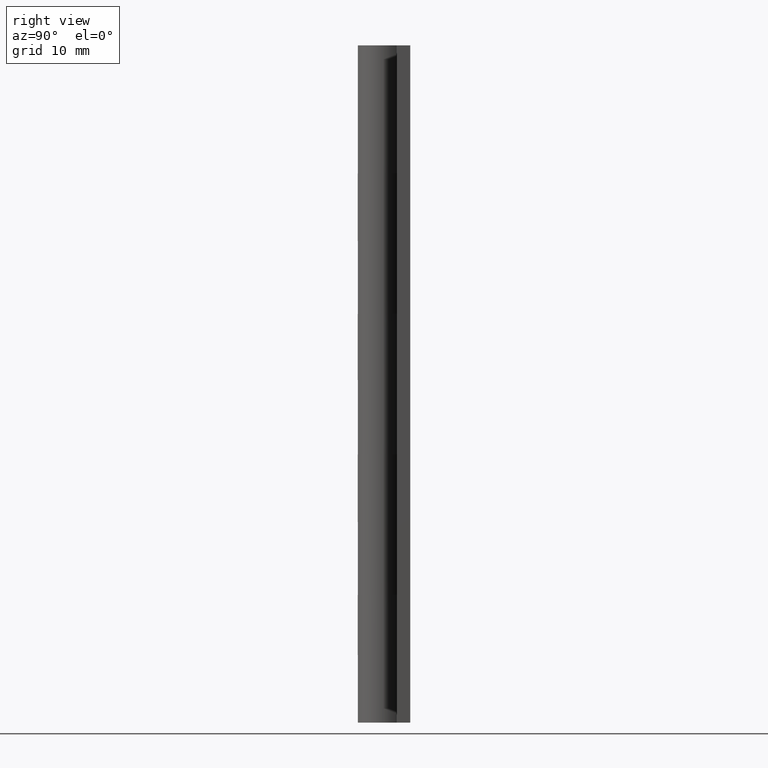
[diagram: clean part render]
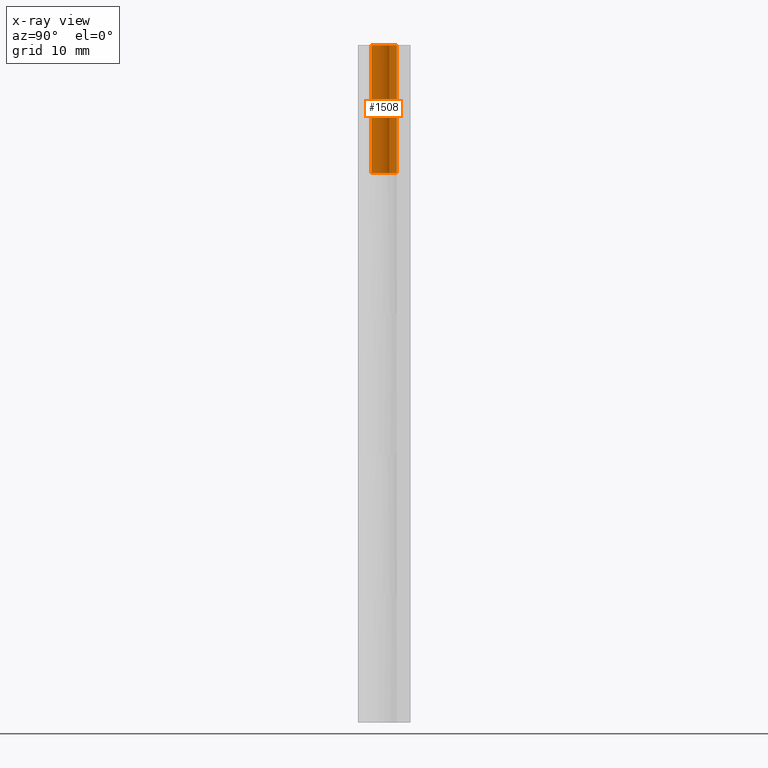
[diagram: x-ray — body ghosted, one internal face saturated and labeled with its STEP entity id]
A machine part, right view, then the same camera in x-ray: the body is ghosted and one INTERNAL B-rep face — a face not visible from any outside direction — is saturated and labeled: STEP entity #1508.
In plain terms, the highlighted face is a freeform B-spline surface patch.
Its self-contained STEP definition (entity closure, byte-faithful):
#1105=CARTESIAN_POINT('',(0.0,1.500000000000000,64.899993999999893));
#1106=VERTEX_POINT('',#1105);
#1112=CARTESIAN_POINT('',(1.325797621821316,0.701612903225806,64.899993999999893));
#1113=VERTEX_POINT('',#1112);
#1114=CARTESIAN_POINT('',(1.325797621821315,0.701612903225806,64.899993999999893));
#1115=CARTESIAN_POINT('',(1.859045520162959,-0.306035035134632,64.899993999999893));
#1116=CARTESIAN_POINT('',(1.030933009042893,-1.089576583295441,64.899993999999893));
#1117=CARTESIAN_POINT('',(0.202820497922826,-1.873118131456252,64.899993999999893));
#1118=CARTESIAN_POINT('',(-0.773815431857395,-1.284994037892532,64.899993999999893));
#1119=CARTESIAN_POINT('',(-1.750451361637613,-0.696869944328814,64.899993999999893));
#1120=CARTESIAN_POINT('',(-1.445249296287461,0.401565027835592,64.899993999999893));
#1121=CARTESIAN_POINT('',(-1.140047230937308,1.500000000000000,64.899993999999893));
#1122=CARTESIAN_POINT('',(0.0,1.500000000000000,64.899993999999893));
#1130=(BOUNDED_CURVE()B_SPLINE_CURVE(2,(#1114,#1115,#1116,#1117,#1118,#1119,#1120,#1121,#1122),.UNSPECIFIED.,.F.,.U.)B_SPLINE_CURVE_WITH_KNOTS((3,2,2,2,3),(0.0,0.250000000000000,0.500000000000000,0.750000000000000,1.0),.UNSPECIFIED.)CURVE()GEOMETRIC_REPRESENTATION_ITEM()RATIONAL_B_SPLINE_CURVE((1.0,0.796150117301085,1.0,0.796150117301085,1.0,0.796150117301085,1.0,0.796150117301085,1.0))REPRESENTATION_ITEM(''));
#1131=EDGE_CURVE('',#1113,#1106,#1130,.T.);
#1247=CARTESIAN_POINT('',(1.325797621821316,0.701612903225806,80.0));
#1248=VERTEX_POINT('',#1247);
#1254=CARTESIAN_POINT('',(0.0,1.500000000000000,80.0));
#1255=VERTEX_POINT('',#1254);
#1256=CARTESIAN_POINT('',(1.325797621821315,0.701612903225806,80.0));
#1257=CARTESIAN_POINT('',(1.859045520162959,-0.306035035134632,79.999999999999986));
#1258=CARTESIAN_POINT('',(1.030933009042893,-1.089576583295441,80.0));
#1259=CARTESIAN_POINT('',(0.202820497922826,-1.873118131456252,79.999999999999986));
#1260=CARTESIAN_POINT('',(-0.773815431857395,-1.284994037892532,80.0));
#1261=CARTESIAN_POINT('',(-1.750451361637613,-0.696869944328814,79.999999999999986));
#1262=CARTESIAN_POINT('',(-1.445249296287461,0.401565027835592,80.0));
#1263=CARTESIAN_POINT('',(-1.140047230937308,1.500000000000000,79.999999999999986));
#1264=CARTESIAN_POINT('',(0.0,1.500000000000000,80.0));
#1272=(BOUNDED_CURVE()B_SPLINE_CURVE(2,(#1256,#1257,#1258,#1259,#1260,#1261,#1262,#1263,#1264),.UNSPECIFIED.,.F.,.U.)B_SPLINE_CURVE_WITH_KNOTS((3,2,2,2,3),(0.0,0.250000000000000,0.500000000000000,0.750000000000000,1.0),.UNSPECIFIED.)CURVE()GEOMETRIC_REPRESENTATION_ITEM()RATIONAL_B_SPLINE_CURVE((1.0,0.796150117301085,1.0,0.796150117301085,1.0,0.796150117301085,1.0,0.796150117301085,1.0))REPRESENTATION_ITEM(''));
#1273=EDGE_CURVE('',#1248,#1255,#1272,.T.);
#1368=CARTESIAN_POINT('',(0.0,1.500000000000000,80.0));
#1369=CARTESIAN_POINT('',(0.0,1.500000000000000,64.899993999999893));
#1370=QUASI_UNIFORM_CURVE('',1,(#1368,#1369),.UNSPECIFIED.,.F.,.U.);
#1371=EDGE_CURVE('',#1255,#1106,#1370,.T.);
#1470=CARTESIAN_POINT('',(1.325797621821316,0.701612903225806,80.0));
#1471=CARTESIAN_POINT('',(1.325797621821316,0.701612903225806,64.899993999999893));
#1472=QUASI_UNIFORM_CURVE('',1,(#1470,#1471),.UNSPECIFIED.,.F.,.U.);
#1473=EDGE_CURVE('',#1248,#1113,#1472,.T.);
#1480=CARTESIAN_POINT('',(0.042201198246453,1.499406235436735,80.377500150000017));
#1481=CARTESIAN_POINT('',(0.042201198246453,1.499406235436735,64.513056346249897));
#1482=CARTESIAN_POINT('',(-1.787542359153688,1.550904867882746,80.377500150000017));
#1483=CARTESIAN_POINT('',(-1.787542359153688,1.550904867882746,64.513056346249911));
#1484=CARTESIAN_POINT('',(-1.478461793582941,-0.253279933898269,80.377500150000017));
#1485=CARTESIAN_POINT('',(-1.478461793582941,-0.253279933898269,64.513056346249897));
#1486=CARTESIAN_POINT('',(-1.169381228012195,-2.057464735679284,80.377500150000017));
#1487=CARTESIAN_POINT('',(-1.169381228012195,-2.057464735679284,64.513056346249911));
#1488=CARTESIAN_POINT('',(0.538883399751041,-1.399858807691961,80.377500150000017));
#1489=CARTESIAN_POINT('',(0.538883399751041,-1.399858807691961,64.513056346249897));
#1490=CARTESIAN_POINT('',(2.247148027514276,-0.742252879704639,80.377500150000017));
#1491=CARTESIAN_POINT('',(2.247148027514276,-0.742252879704639,64.513056346249911));
#1492=CARTESIAN_POINT('',(1.266662716277743,0.803470947322858,80.377500150000017));
#1493=CARTESIAN_POINT('',(1.266662716277743,0.803470947322858,64.513056346249897));
#1501=(BOUNDED_SURFACE()B_SPLINE_SURFACE(1,2,((#1480,#1482,#1484,#1486,#1488,#1490,#1492),(#1481,#1483,#1485,#1487,#1489,#1491,#1493)),.UNSPECIFIED.,.F.,.F.,.U.)B_SPLINE_SURFACE_WITH_KNOTS((2,2),(3,2,2,3),(0.0,15.864443803750120),(0.0,2.840458804494715,5.680917608989430,8.521376413484145),.UNSPECIFIED.)GEOMETRIC_REPRESENTATION_ITEM()RATIONAL_B_SPLINE_SURFACE(((1.0,0.633830967398710,1.0,0.633830967398710,1.0,0.633830967398710,1.0),(1.0,0.633830967398710,1.0,0.633830967398710,1.0,0.633830967398710,1.0)))REPRESENTATION_ITEM('')SURFACE());
#1502=ORIENTED_EDGE('',*,*,#1473,.T.);
#1503=ORIENTED_EDGE('',*,*,#1131,.T.);
#1504=ORIENTED_EDGE('',*,*,#1371,.F.);
#1505=ORIENTED_EDGE('',*,*,#1273,.F.);
#1506=EDGE_LOOP('',(#1502,#1503,#1504,#1505));
#1507=FACE_OUTER_BOUND('',#1506,.T.);
#1508=ADVANCED_FACE('',(#1507),#1501,.F.);